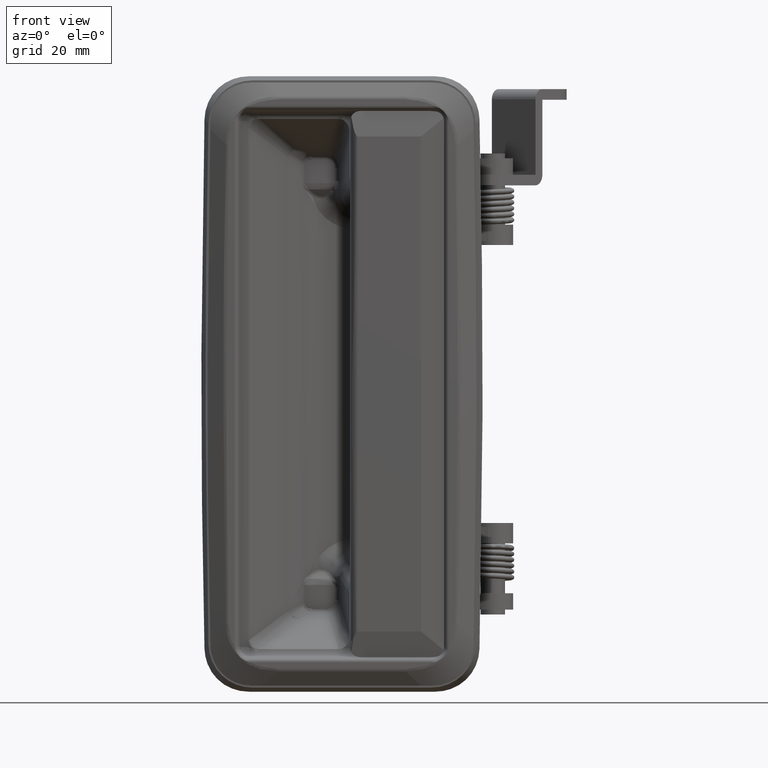
[diagram: clean part render]
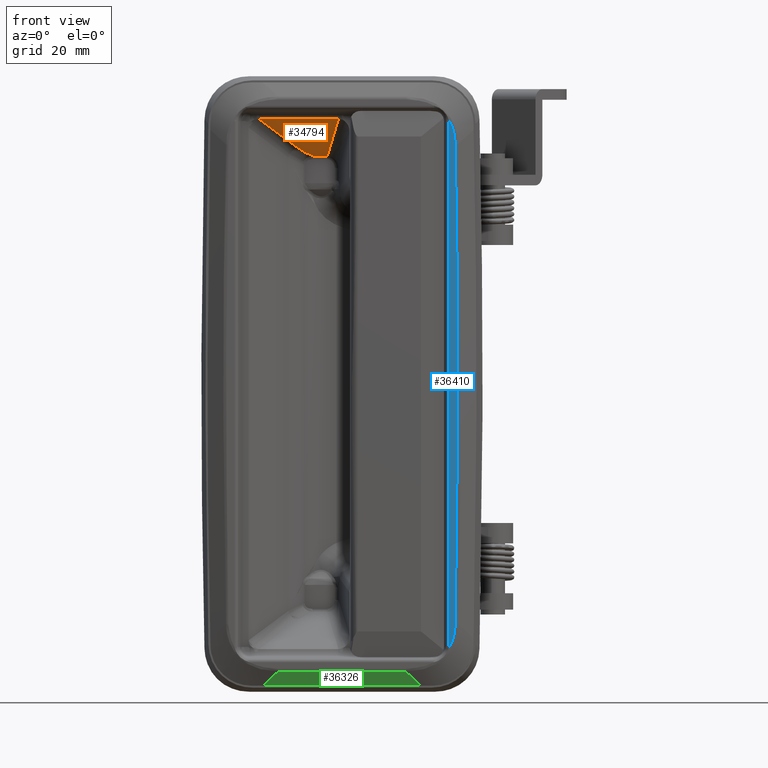
[diagram: same view with three faces highlighted in distinct colors, each labeled with its STEP entity id]
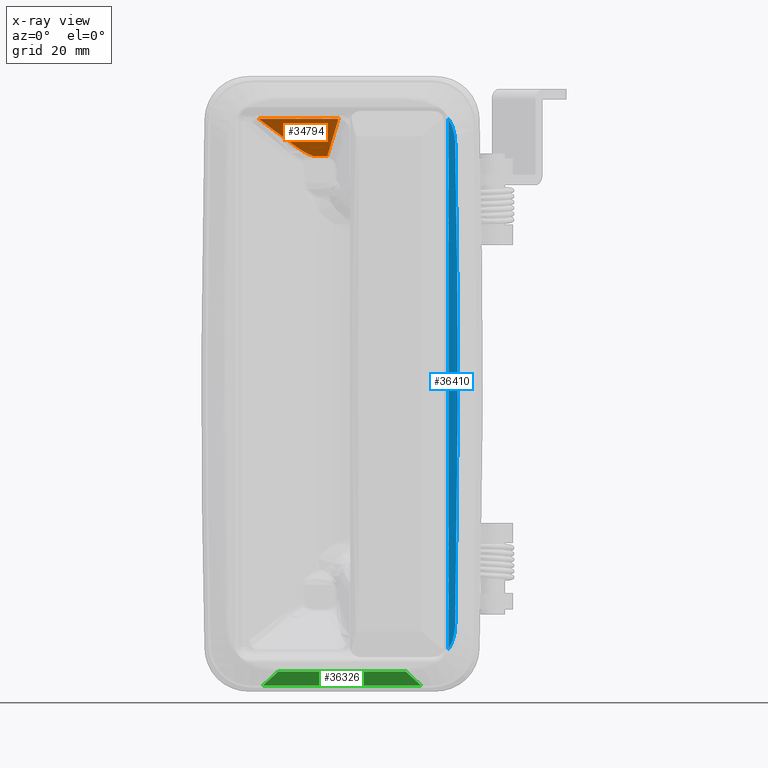
[diagram: x-ray of the same camera — body ghosted, the three highlighted faces saturated]
A machine part, front view with three faces highlighted in distinct colors.
The next image is the same camera in x-ray (body ghosted, the three faces saturated) — at least one of them is partly hidden behind the body in this view.
Their STEP definitions:

[orange] entity #34794 — the highlighted face is a freeform B-spline surface patch.
#30739=CARTESIAN_POINT('',(-7.138270725956580,17.159685447364399,55.954794282563398));
#30740=VERTEX_POINT('',#30739);
#30772=CARTESIAN_POINT('',(-11.022195758435180,14.226676632760521,58.073050314888199));
#30773=VERTEX_POINT('',#30772);
#30774=CARTESIAN_POINT('',(-11.022195758435229,14.226676632760510,58.073050314888192));
#30775=CARTESIAN_POINT('',(-9.305903504982124,15.992016276546295,56.798099714353967));
#30776=CARTESIAN_POINT('',(-7.138270725956623,17.159685447364389,55.954794282563377));
#30784=(BOUNDED_CURVE()B_SPLINE_CURVE(2,(#30774,#30775,#30776),.UNSPECIFIED.,.F.,.U.)CURVE()GEOMETRIC_REPRESENTATION_ITEM()QUASI_UNIFORM_CURVE()RATIONAL_B_SPLINE_CURVE((1.0,0.988366207136681,1.0))REPRESENTATION_ITEM(''));
#30785=EDGE_CURVE('',#30773,#30740,#30784,.T.);
#31630=CARTESIAN_POINT('',(-0.852887010233554,4.574100000000001,65.044263145213193));
#31631=VERTEX_POINT('',#31630);
#31815=CARTESIAN_POINT('',(-20.406589610907801,4.574100000000001,65.044263145213193));
#31816=VERTEX_POINT('',#31815);
#31827=CARTESIAN_POINT('',(-0.852887010233554,4.574100000000001,65.044263145213193));
#31828=CARTESIAN_POINT('',(-20.406589610907801,4.574100000000001,65.044263145213193));
#31829=QUASI_UNIFORM_CURVE('',1,(#31827,#31828),.UNSPECIFIED.,.F.,.U.);
#31830=EDGE_CURVE('',#31631,#31816,#31829,.T.);
#33897=CARTESIAN_POINT('',(-3.605584341371405,17.159685447364399,55.954794282563398));
#33898=VERTEX_POINT('',#33897);
#33907=CARTESIAN_POINT('',(-7.138270725956580,17.159685447364399,55.954794282563398));
#33908=CARTESIAN_POINT('',(-3.605584341371405,17.159685447364399,55.954794282563398));
#33909=QUASI_UNIFORM_CURVE('',1,(#33907,#33908),.UNSPECIFIED.,.F.,.U.);
#33910=EDGE_CURVE('',#30740,#33898,#33909,.T.);
#34768=CARTESIAN_POINT('',(-20.406589610907801,4.574100000000001,65.044263145213193));
#34769=CARTESIAN_POINT('',(-11.022195758435180,14.226676632760521,58.073050314888199));
#34770=QUASI_UNIFORM_CURVE('',1,(#34768,#34769),.UNSPECIFIED.,.F.,.U.);
#34771=EDGE_CURVE('',#31816,#30773,#34770,.T.);
#34778=CARTESIAN_POINT('',(0.123820396771257,17.788335416066950,55.500775330491187));
#34779=CARTESIAN_POINT('',(0.123820396771257,3.945449693725677,65.498282341083865));
#34780=CARTESIAN_POINT('',(-21.383297542383790,17.788335416066950,55.500775330491187));
#34781=CARTESIAN_POINT('',(-21.383297542383790,3.945449693725677,65.498282341083865));
#34782=B_SPLINE_SURFACE_WITH_KNOTS('',1,1,((#34778,#34780),(#34779,#34781)),.UNSPECIFIED.,.F.,.F.,.U.,(2,2),(2,2),(0.0,17.075585833248869),(0.0,21.507117939155041),.UNSPECIFIED.);
#34783=ORIENTED_EDGE('',*,*,#30785,.T.);
#34784=ORIENTED_EDGE('',*,*,#33910,.T.);
#34785=CARTESIAN_POINT('',(-3.605584341371405,17.159685447364399,55.954794282563398));
#34786=CARTESIAN_POINT('',(-0.852887010233554,4.574100000000001,65.044263145213193));
#34787=QUASI_UNIFORM_CURVE('',1,(#34785,#34786),.UNSPECIFIED.,.F.,.U.);
#34788=EDGE_CURVE('',#33898,#31631,#34787,.T.);
#34789=ORIENTED_EDGE('',*,*,#34788,.T.);
#34790=ORIENTED_EDGE('',*,*,#31830,.T.);
#34791=ORIENTED_EDGE('',*,*,#34771,.T.);
#34792=EDGE_LOOP('',(#34783,#34784,#34789,#34790,#34791));
#34793=FACE_OUTER_BOUND('',#34792,.T.);
#34794=ADVANCED_FACE('',(#34793),#34782,.T.);

[blue] entity #36410 — the highlighted face is a freeform B-spline surface patch.
#35251=CARTESIAN_POINT('',(26.122959400344850,0.0,65.076477178933501));
#35252=VERTEX_POINT('',#35251);
#35288=CARTESIAN_POINT('',(27.787206368359751,0.0,58.817438038948403));
#35289=VERTEX_POINT('',#35288);
#35290=CARTESIAN_POINT('',(26.122959400344850,0.0,65.076477178933501));
#35291=CARTESIAN_POINT('',(26.257331400910552,0.0,64.861598661064335));
#35292=CARTESIAN_POINT('',(26.382429815534199,0.0,64.641848192490684));
#35293=CARTESIAN_POINT('',(26.676085370343920,0.0,64.075575467556817));
#35294=CARTESIAN_POINT('',(26.833054440498259,0.0,63.722965328223687));
#35295=CARTESIAN_POINT('',(27.005674764251850,0.0,63.269808930884970));
#35296=CARTESIAN_POINT('',(27.039017761842590,0.0,63.178557168572929));
#35297=CARTESIAN_POINT('',(27.103381827383419,0.0,62.994833800102157));
#35298=CARTESIAN_POINT('',(27.134422669713100,0.0,62.902289637576068));
#35299=CARTESIAN_POINT('',(27.223645843485698,0.0,62.624398546093921));
#35300=CARTESIAN_POINT('',(27.278107026457018,0.0,62.438321855393653));
#35301=CARTESIAN_POINT('',(27.427585985130118,0.0,61.877832117195553));
#35302=CARTESIAN_POINT('',(27.508740301907348,0.0,61.501166087942742));
#35303=CARTESIAN_POINT('',(27.639023126688429,0.0,60.742629443536373));
#35304=CARTESIAN_POINT('',(27.688137317234620,0.0,60.360756501620692));
#35305=CARTESIAN_POINT('',(27.758120784236262,0.0,59.592420473550177));
#35306=CARTESIAN_POINT('',(27.778980991300269,0.0,59.205955913508198));
#35307=CARTESIAN_POINT('',(27.787206368359751,0.0,58.817438038948403));
#35308=B_SPLINE_CURVE_WITH_KNOTS('',3,(#35290,#35291,#35292,#35293,#35294,#35295,#35296,#35297,#35298,#35299,#35300,#35301,#35302,#35303,#35304,#35305,#35306,#35307),.UNSPECIFIED.,.F.,.U.,(4,2,2,2,2,2,2,2,4),(0.646490999539931,0.687500000000047,0.750000000000042,0.765625000000040,0.781250000000038,0.812500000000032,0.875000000000022,0.937500000000011,1.0),.UNSPECIFIED.);
#35309=EDGE_CURVE('',#35252,#35289,#35308,.T.);
#36053=CARTESIAN_POINT('',(27.787206368359751,0.0,-58.817438038948097));
#36054=VERTEX_POINT('',#36053);
#36055=CARTESIAN_POINT('',(27.787206368359751,0.0,-58.817438038948097));
#36056=CARTESIAN_POINT('',(29.032394774201279,0.0,-8.452478E-013));
#36057=CARTESIAN_POINT('',(27.787206368360629,0.0,58.817438038947692));
#36065=(BOUNDED_CURVE()B_SPLINE_CURVE(2,(#36055,#36056,#36057),.UNSPECIFIED.,.F.,.U.)CURVE()GEOMETRIC_REPRESENTATION_ITEM()QUASI_UNIFORM_CURVE()RATIONAL_B_SPLINE_CURVE((1.0,0.999775982482555,1.0))REPRESENTATION_ITEM(''));
#36066=EDGE_CURVE('',#36054,#35289,#36065,.T.);
#36359=CARTESIAN_POINT('',(28.523955055818220,0.0,71.577616996848604));
#36360=CARTESIAN_POINT('',(28.523955055818220,0.0,-71.577620487849259));
#36361=CARTESIAN_POINT('',(26.008735110639151,0.0,71.577616996848604));
#36362=CARTESIAN_POINT('',(26.008735110639151,0.0,-71.577620487849259));
#36363=B_SPLINE_SURFACE_WITH_KNOTS('',1,1,((#36359,#36361),(#36360,#36362)),.UNSPECIFIED.,.F.,.F.,.U.,(2,2),(2,2),(0.0,143.155237484697890),(0.0,2.515219945179066),.UNSPECIFIED.);
#36364=CARTESIAN_POINT('',(26.167326987979049,0.0,64.500000000000000));
#36365=VERTEX_POINT('',#36364);
#36366=CARTESIAN_POINT('',(26.167326987979099,0.0,-64.500000000000000));
#36367=VERTEX_POINT('',#36366);
#36368=CARTESIAN_POINT('',(26.167326987979049,0.0,64.500000000000000));
#36369=CARTESIAN_POINT('',(26.167326987979099,0.0,-64.500000000000000));
#36370=QUASI_UNIFORM_CURVE('',1,(#36368,#36369),.UNSPECIFIED.,.F.,.U.);
#36371=EDGE_CURVE('',#36365,#36367,#36370,.T.);
#36372=ORIENTED_EDGE('',*,*,#36371,.T.);
#36373=CARTESIAN_POINT('',(26.122959400328401,0.0,-65.076477178959891));
#36374=VERTEX_POINT('',#36373);
#36375=CARTESIAN_POINT('',(26.167326987979099,0.0,-64.500000000000000));
#36376=CARTESIAN_POINT('',(26.167336658780961,0.0,-64.692917710414022));
#36377=CARTESIAN_POINT('',(26.152484373387789,0.0,-64.885833392076023));
#36378=CARTESIAN_POINT('',(26.122959400328401,0.0,-65.076477178959891));
#36379=B_SPLINE_CURVE_WITH_KNOTS('',3,(#36375,#36376,#36377,#36378),.UNSPECIFIED.,.F.,.U.,(4,4),(2.565109E-009,0.578759830427656),.UNSPECIFIED.);
#36380=EDGE_CURVE('',#36367,#36374,#36379,.T.);
#36381=ORIENTED_EDGE('',*,*,#36380,.T.);
#36382=CARTESIAN_POINT('',(27.787206368359751,0.0,-58.817438038948097));
#36383=CARTESIAN_POINT('',(27.778978276948919,0.0,-59.206019237231700));
#36384=CARTESIAN_POINT('',(27.758108978541980,0.0,-59.592526753894226));
#36385=CARTESIAN_POINT('',(27.688135513959882,0.0,-60.360704919837893));
#36386=CARTESIAN_POINT('',(27.639039488069020,0.0,-60.742408530650387));
#36387=CARTESIAN_POINT('',(27.508873603734209,0.0,-61.500409904927913));
#36388=CARTESIAN_POINT('',(27.427817576175450,0.0,-61.876710006794283));
#36389=CARTESIAN_POINT('',(27.278607792769940,0.0,-62.436489448185370));
#36390=CARTESIAN_POINT('',(27.224256886147980,0.0,-62.622302449017262));
#36391=CARTESIAN_POINT('',(27.105568816488010,0.0,-62.992240064477372));
#36392=CARTESIAN_POINT('',(27.041033320403869,0.0,-63.176833671442147));
#36393=CARTESIAN_POINT('',(26.742838472306371,0.0,-63.960070785874123));
#36394=CARTESIAN_POINT('',(26.462288521449761,0.0,-64.533990868070489));
#36395=CARTESIAN_POINT('',(26.122959400328401,0.0,-65.076477178959891));
#36396=B_SPLINE_CURVE_WITH_KNOTS('',3,(#36382,#36383,#36384,#36385,#36386,#36387,#36388,#36389,#36390,#36391,#36392,#36393,#36394,#36395),.UNSPECIFIED.,.F.,.U.,(4,2,2,2,2,2,4),(0.0,0.062500000000001,0.125000000000002,0.187500000000003,0.218750000000004,0.250000000000004,0.353420216150640),.UNSPECIFIED.);
#36397=EDGE_CURVE('',#36054,#36374,#36396,.T.);
#36398=ORIENTED_EDGE('',*,*,#36397,.F.);
#36399=ORIENTED_EDGE('',*,*,#36066,.T.);
#36400=ORIENTED_EDGE('',*,*,#35309,.F.);
#36401=CARTESIAN_POINT('',(26.122959400344850,0.0,65.076477178933501));
#36402=CARTESIAN_POINT('',(26.152489220825309,0.0,64.885832071659991));
#36403=CARTESIAN_POINT('',(26.167332017292338,0.0,64.692916399758545));
#36404=CARTESIAN_POINT('',(26.167326987979049,0.0,64.500000000000000));
#36405=B_SPLINE_CURVE_WITH_KNOTS('',3,(#36401,#36402,#36403,#36404),.UNSPECIFIED.,.F.,.U.,(4,4),(2.565101E-009,0.578759830399680),.UNSPECIFIED.);
#36406=EDGE_CURVE('',#35252,#36365,#36405,.T.);
#36407=ORIENTED_EDGE('',*,*,#36406,.T.);
#36408=EDGE_LOOP('',(#36372,#36381,#36398,#36399,#36400,#36407));
#36409=FACE_OUTER_BOUND('',#36408,.T.);
#36410=ADVANCED_FACE('',(#36409),#36363,.F.);

[green] entity #36326 — the highlighted face is a freeform B-spline surface patch.
#35933=CARTESIAN_POINT('',(-15.667087007523749,0.213744086803417,-70.565906806816002));
#35934=VERTEX_POINT('',#35933);
#36148=CARTESIAN_POINT('',(15.667087007523500,0.213744086803417,-70.565906806816002));
#36149=VERTEX_POINT('',#36148);
#36150=CARTESIAN_POINT('',(15.667087007523500,0.213744086803417,-70.565906806816002));
#36151=CARTESIAN_POINT('',(-15.667087007523749,0.213744086803417,-70.565906806816002));
#36152=QUASI_UNIFORM_CURVE('',1,(#36150,#36151),.UNSPECIFIED.,.F.,.U.);
#36153=EDGE_CURVE('',#36149,#35934,#36152,.T.);
#36295=CARTESIAN_POINT('',(21.348585536690042,0.110829312932517,-70.394373858472463));
#36296=CARTESIAN_POINT('',(21.348585536690042,2.377014829133865,-74.171533040453170));
#36297=CARTESIAN_POINT('',(-21.348586577900541,0.110829312932517,-70.394373858472463));
#36298=CARTESIAN_POINT('',(-21.348586577900541,2.377014829133865,-74.171533040453170));
#36299=B_SPLINE_SURFACE_WITH_KNOTS('',1,1,((#36295,#36297),(#36296,#36298)),.UNSPECIFIED.,.F.,.F.,.U.,(2,2),(2,2),(0.0,4.404830107945361),(0.0,42.697172114590579),.UNSPECIFIED.);
#36300=ORIENTED_EDGE('',*,*,#36153,.T.);
#36301=CARTESIAN_POINT('',(-19.409569608081750,2.274100000000000,-74.0));
#36302=VERTEX_POINT('',#36301);
#36303=CARTESIAN_POINT('',(-15.667087007523699,0.213744086803417,-70.565906806816002));
#36304=CARTESIAN_POINT('',(-16.914942712145361,0.900355585602058,-71.710314847816989));
#36305=CARTESIAN_POINT('',(-18.162436606589871,1.587141036996610,-72.855012823883186));
#36306=CARTESIAN_POINT('',(-19.409569608081899,2.274100000000000,-74.0));
#36307=QUASI_UNIFORM_CURVE('',3,(#36303,#36304,#36305,#36306),.UNSPECIFIED.,.F.,.U.);
#36308=EDGE_CURVE('',#35934,#36302,#36307,.T.);
#36309=ORIENTED_EDGE('',*,*,#36308,.T.);
#36310=CARTESIAN_POINT('',(19.409569608081700,2.274100000000000,-74.0));
#36311=VERTEX_POINT('',#36310);
#36312=CARTESIAN_POINT('',(-19.409569608081750,2.274100000000000,-74.0));
#36313=CARTESIAN_POINT('',(19.409569608081700,2.274100000000000,-74.0));
#36314=QUASI_UNIFORM_CURVE('',1,(#36312,#36313),.UNSPECIFIED.,.F.,.U.);
#36315=EDGE_CURVE('',#36302,#36311,#36314,.T.);
#36316=ORIENTED_EDGE('',*,*,#36315,.T.);
#36317=CARTESIAN_POINT('',(19.409569608081700,2.274099999999970,-74.0));
#36318=CARTESIAN_POINT('',(18.162436606589651,1.587141036996567,-72.855012823883172));
#36319=CARTESIAN_POINT('',(16.914942712145180,0.900355585602060,-71.710314847817017));
#36320=CARTESIAN_POINT('',(15.667087007523500,0.213744086803405,-70.565906806816002));
#36321=QUASI_UNIFORM_CURVE('',3,(#36317,#36318,#36319,#36320),.UNSPECIFIED.,.F.,.U.);
#36322=EDGE_CURVE('',#36311,#36149,#36321,.T.);
#36323=ORIENTED_EDGE('',*,*,#36322,.T.);
#36324=EDGE_LOOP('',(#36300,#36309,#36316,#36323));
#36325=FACE_OUTER_BOUND('',#36324,.T.);
#36326=ADVANCED_FACE('',(#36325),#36299,.F.);